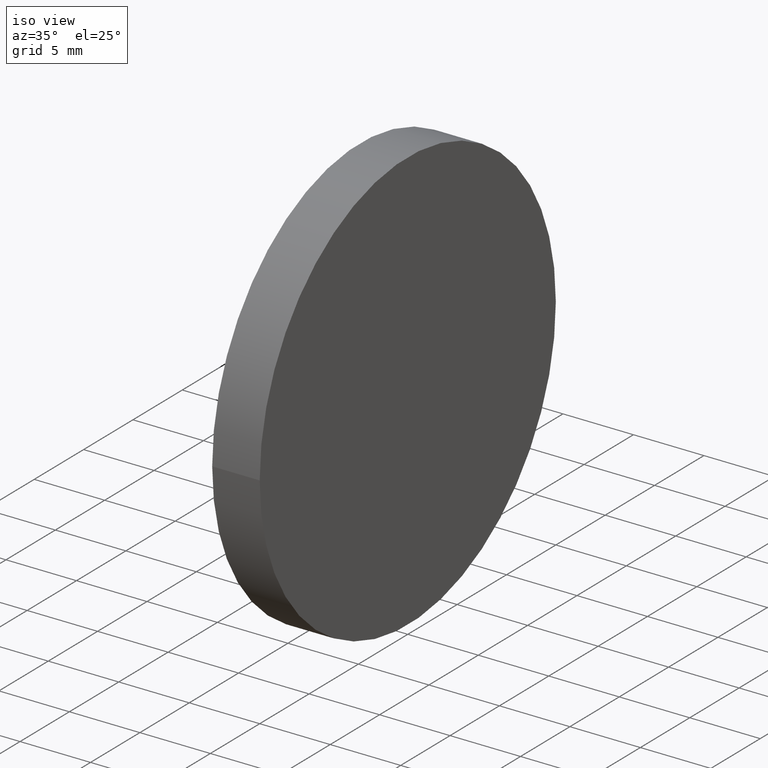
[diagram: clean part render]
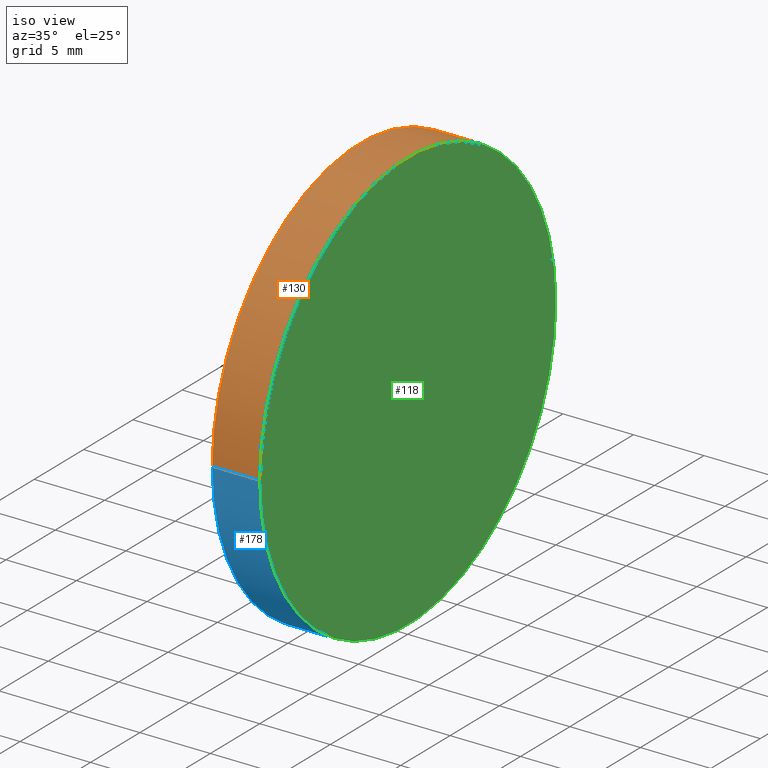
[diagram: same view with three faces highlighted in distinct colors, each labeled with its STEP entity id]
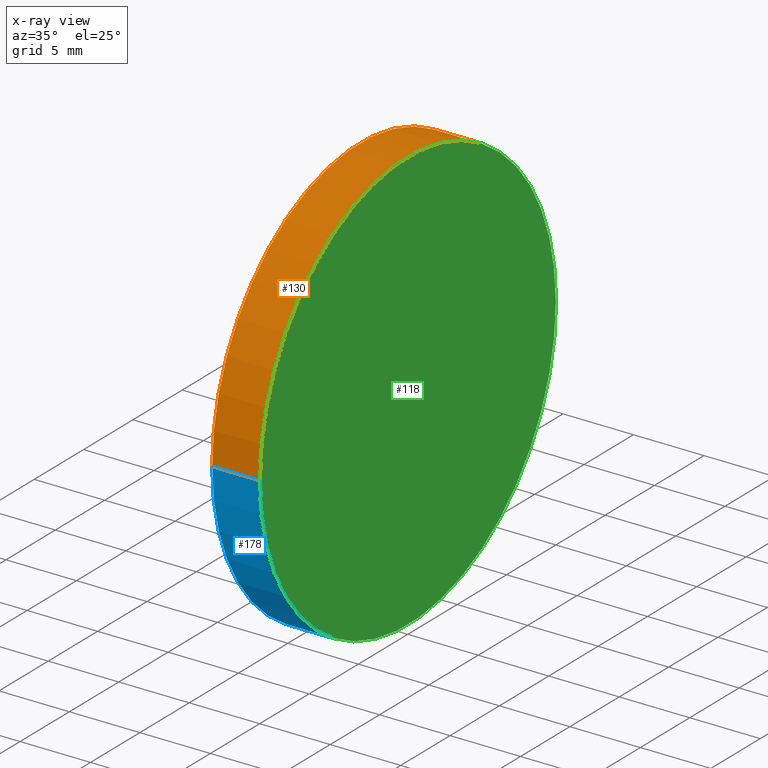
[diagram: x-ray of the same camera — body ghosted, the three highlighted faces saturated]
A machine part, iso view with three faces highlighted in distinct colors.
The next image is the same camera in x-ray (body ghosted, the three faces saturated) — at least one of them is partly hidden behind the body in this view.
Their STEP definitions:

[orange] entity #130 — the highlighted cylindrical surface (partial cylindrical patch) has radius 15 mm, axis along (1, 0, -0).
#4 = AXIS2_PLACEMENT_3D ( 'NONE', #98, #117, #182 ) ;
#8 = CARTESIAN_POINT ( 'NONE',  ( -9.652616528953584771E-16, 15.00000000000000000, 0.000000000000000000 ) ) ;
#12 = DIRECTION ( 'NONE',  ( 1.000000000000000000, 1.224646799147353207E-16, -0.000000000000000000 ) ) ;
#32 = VERTEX_POINT ( 'NONE', #131 ) ;
#44 = LINE ( 'NONE', #99, #156 ) ;
#62 = ORIENTED_EDGE ( 'NONE', *, *, #80, .T. ) ;
#64 = CYLINDRICAL_SURFACE ( 'NONE', #96, 15.00000000000000000 ) ;
#70 = EDGE_CURVE ( 'NONE', #72, #32, #75, .T. ) ;
#72 = VERTEX_POINT ( 'NONE', #84 ) ;
#75 = LINE ( 'NONE', #134, #188 ) ;
#77 = DIRECTION ( 'NONE',  ( -1.224646799147352961E-16, 1.000000000000000000, 0.000000000000000000 ) ) ;
#79 = CARTESIAN_POINT ( 'NONE',  ( -3.370000000000006768, 14.99999999999998579, 0.000000000000000000 ) ) ;
#80 = EDGE_CURVE ( 'NONE', #148, #72, #138, .T. ) ;
#84 = CARTESIAN_POINT ( 'NONE',  ( -3.370000000000004992, -14.99999999999998579, 1.836970198721028011E-15 ) ) ;
#92 = DIRECTION ( 'NONE',  ( 1.000000000000000000, 1.224646799147353207E-16, -0.000000000000000000 ) ) ;
#96 = AXIS2_PLACEMENT_3D ( 'NONE', #152, #92, #77 ) ;
#97 = EDGE_LOOP ( 'NONE', ( #62, #194, #143, #193 ) ) ;
#98 = CARTESIAN_POINT ( 'NONE',  ( -3.369999999999999218, -4.127059713126579305E-16, 0.000000000000000000 ) ) ;
#99 = CARTESIAN_POINT ( 'NONE',  ( -1.836970198721029589E-15, 15.00000000000000000, 0.000000000000000000 ) ) ;
#100 = EDGE_CURVE ( 'NONE', #148, #113, #44, .T. ) ;
#107 = DIRECTION ( 'NONE',  ( 1.000000000000000000, 1.224646799147353207E-16, -0.000000000000000000 ) ) ;
#113 = VERTEX_POINT ( 'NONE', #8 ) ;
#117 = DIRECTION ( 'NONE',  ( 1.000000000000000000, 1.224646799147353207E-16, -0.000000000000000000 ) ) ;
#128 = CIRCLE ( 'NONE', #163, 15.00000000000000000 ) ;
#130 = ADVANCED_FACE ( 'NONE', ( #136 ), #64, .T. ) ;
#131 = CARTESIAN_POINT ( 'NONE',  ( 2.708678744546701095E-15, -15.00000000000000000, 1.836970198721029589E-15 ) ) ;
#134 = CARTESIAN_POINT ( 'NONE',  ( 1.836970198721029589E-15, -15.00000000000000000, 1.836970198721029589E-15 ) ) ;
#136 = FACE_OUTER_BOUND ( 'NONE', #97, .T. ) ;
#138 = CIRCLE ( 'NONE', #4, 15.00000000000000000 ) ;
#143 = ORIENTED_EDGE ( 'NONE', *, *, #157, .F. ) ;
#148 = VERTEX_POINT ( 'NONE', #79 ) ;
#152 = CARTESIAN_POINT ( 'NONE',  ( 0.000000000000000000, 0.000000000000000000, 0.000000000000000000 ) ) ;
#156 = VECTOR ( 'NONE', #12, 1000.000000000000000 ) ;
#157 = EDGE_CURVE ( 'NONE', #113, #32, #128, .T. ) ;
#163 = AXIS2_PLACEMENT_3D ( 'NONE', #195, #107, #187 ) ;
#182 = DIRECTION ( 'NONE',  ( -1.156482317317871478E-16, 1.000000000000000000, 0.000000000000000000 ) ) ;
#187 = DIRECTION ( 'NONE',  ( -1.224646799147352961E-16, 1.000000000000000000, 0.000000000000000000 ) ) ;
#188 = VECTOR ( 'NONE', #192, 1000.000000000000000 ) ;
#192 = DIRECTION ( 'NONE',  ( 1.000000000000000000, 1.224646799147353207E-16, -0.000000000000000000 ) ) ;
#193 = ORIENTED_EDGE ( 'NONE', *, *, #100, .F. ) ;
#194 = ORIENTED_EDGE ( 'NONE', *, *, #70, .T. ) ;
#195 = CARTESIAN_POINT ( 'NONE',  ( 8.717085458256711118E-16, 1.067535080434802035E-31, 0.000000000000000000 ) ) ;

[blue] entity #178 — the highlighted cylindrical surface (partial cylindrical patch) has radius 15 mm, axis along (1, 0, -0).
#8 = CARTESIAN_POINT ( 'NONE',  ( -9.652616528953584771E-16, 15.00000000000000000, 0.000000000000000000 ) ) ;
#12 = DIRECTION ( 'NONE',  ( 1.000000000000000000, 1.224646799147353207E-16, -0.000000000000000000 ) ) ;
#18 = AXIS2_PLACEMENT_3D ( 'NONE', #49, #170, #124 ) ;
#30 = FACE_OUTER_BOUND ( 'NONE', #47, .T. ) ;
#32 = VERTEX_POINT ( 'NONE', #131 ) ;
#41 = EDGE_CURVE ( 'NONE', #32, #113, #150, .T. ) ;
#43 = ORIENTED_EDGE ( 'NONE', *, *, #168, .T. ) ;
#44 = LINE ( 'NONE', #99, #156 ) ;
#47 = EDGE_LOOP ( 'NONE', ( #102, #43, #149, #177 ) ) ;
#49 = CARTESIAN_POINT ( 'NONE',  ( -3.369999999999999218, -4.127059713126579305E-16, 0.000000000000000000 ) ) ;
#56 = AXIS2_PLACEMENT_3D ( 'NONE', #91, #186, #81 ) ;
#57 = DIRECTION ( 'NONE',  ( 1.000000000000000000, 1.224646799147353207E-16, -0.000000000000000000 ) ) ;
#70 = EDGE_CURVE ( 'NONE', #72, #32, #75, .T. ) ;
#72 = VERTEX_POINT ( 'NONE', #84 ) ;
#75 = LINE ( 'NONE', #134, #188 ) ;
#79 = CARTESIAN_POINT ( 'NONE',  ( -3.370000000000006768, 14.99999999999998579, 0.000000000000000000 ) ) ;
#81 = DIRECTION ( 'NONE',  ( -1.224646799147352961E-16, 1.000000000000000000, 0.000000000000000000 ) ) ;
#84 = CARTESIAN_POINT ( 'NONE',  ( -3.370000000000004992, -14.99999999999998579, 1.836970198721028011E-15 ) ) ;
#91 = CARTESIAN_POINT ( 'NONE',  ( 0.000000000000000000, 0.000000000000000000, 0.000000000000000000 ) ) ;
#99 = CARTESIAN_POINT ( 'NONE',  ( -1.836970198721029589E-15, 15.00000000000000000, 0.000000000000000000 ) ) ;
#100 = EDGE_CURVE ( 'NONE', #148, #113, #44, .T. ) ;
#102 = ORIENTED_EDGE ( 'NONE', *, *, #70, .F. ) ;
#113 = VERTEX_POINT ( 'NONE', #8 ) ;
#124 = DIRECTION ( 'NONE',  ( -1.156482317317871478E-16, 1.000000000000000000, 0.000000000000000000 ) ) ;
#131 = CARTESIAN_POINT ( 'NONE',  ( 2.708678744546701095E-15, -15.00000000000000000, 1.836970198721029589E-15 ) ) ;
#132 = CIRCLE ( 'NONE', #18, 15.00000000000000000 ) ;
#134 = CARTESIAN_POINT ( 'NONE',  ( 1.836970198721029589E-15, -15.00000000000000000, 1.836970198721029589E-15 ) ) ;
#148 = VERTEX_POINT ( 'NONE', #79 ) ;
#149 = ORIENTED_EDGE ( 'NONE', *, *, #100, .T. ) ;
#150 = CIRCLE ( 'NONE', #171, 15.00000000000000000 ) ;
#156 = VECTOR ( 'NONE', #12, 1000.000000000000000 ) ;
#166 = DIRECTION ( 'NONE',  ( -1.224646799147352961E-16, 1.000000000000000000, 0.000000000000000000 ) ) ;
#168 = EDGE_CURVE ( 'NONE', #72, #148, #132, .T. ) ;
#169 = CYLINDRICAL_SURFACE ( 'NONE', #56, 15.00000000000000000 ) ;
#170 = DIRECTION ( 'NONE',  ( 1.000000000000000000, 1.224646799147353207E-16, -0.000000000000000000 ) ) ;
#171 = AXIS2_PLACEMENT_3D ( 'NONE', #191, #57, #166 ) ;
#177 = ORIENTED_EDGE ( 'NONE', *, *, #41, .F. ) ;
#178 = ADVANCED_FACE ( 'NONE', ( #30 ), #169, .T. ) ;
#186 = DIRECTION ( 'NONE',  ( 1.000000000000000000, 1.224646799147353207E-16, -0.000000000000000000 ) ) ;
#188 = VECTOR ( 'NONE', #192, 1000.000000000000000 ) ;
#191 = CARTESIAN_POINT ( 'NONE',  ( 8.717085458256711118E-16, 1.067535080434802035E-31, 0.000000000000000000 ) ) ;
#192 = DIRECTION ( 'NONE',  ( 1.000000000000000000, 1.224646799147353207E-16, -0.000000000000000000 ) ) ;

[green] entity #118 — the highlighted planar face has unit normal (1, 0, -0).
#8 = CARTESIAN_POINT ( 'NONE',  ( -9.652616528953584771E-16, 15.00000000000000000, 0.000000000000000000 ) ) ;
#16 = DIRECTION ( 'NONE',  ( 1.000000000000000000, 1.224646799147353207E-16, -0.000000000000000000 ) ) ;
#17 = CARTESIAN_POINT ( 'NONE',  ( -1.401115925808194033E-15, 15.00000000000000000, 0.000000000000000000 ) ) ;
#32 = VERTEX_POINT ( 'NONE', #131 ) ;
#36 = PLANE ( 'NONE',  #82 ) ;
#41 = EDGE_CURVE ( 'NONE', #32, #113, #150, .T. ) ;
#42 = ORIENTED_EDGE ( 'NONE', *, *, #157, .T. ) ;
#55 = EDGE_LOOP ( 'NONE', ( #42, #116 ) ) ;
#57 = DIRECTION ( 'NONE',  ( 1.000000000000000000, 1.224646799147353207E-16, -0.000000000000000000 ) ) ;
#82 = AXIS2_PLACEMENT_3D ( 'NONE', #17, #16, #167 ) ;
#107 = DIRECTION ( 'NONE',  ( 1.000000000000000000, 1.224646799147353207E-16, -0.000000000000000000 ) ) ;
#113 = VERTEX_POINT ( 'NONE', #8 ) ;
#116 = ORIENTED_EDGE ( 'NONE', *, *, #41, .T. ) ;
#118 = ADVANCED_FACE ( 'NONE', ( #135 ), #36, .T. ) ;
#128 = CIRCLE ( 'NONE', #163, 15.00000000000000000 ) ;
#131 = CARTESIAN_POINT ( 'NONE',  ( 2.708678744546701095E-15, -15.00000000000000000, 1.836970198721029589E-15 ) ) ;
#135 = FACE_OUTER_BOUND ( 'NONE', #55, .T. ) ;
#150 = CIRCLE ( 'NONE', #171, 15.00000000000000000 ) ;
#157 = EDGE_CURVE ( 'NONE', #113, #32, #128, .T. ) ;
#163 = AXIS2_PLACEMENT_3D ( 'NONE', #195, #107, #187 ) ;
#166 = DIRECTION ( 'NONE',  ( -1.224646799147352961E-16, 1.000000000000000000, 0.000000000000000000 ) ) ;
#167 = DIRECTION ( 'NONE',  ( -1.224646799147353207E-16, 1.000000000000000000, 0.000000000000000000 ) ) ;
#171 = AXIS2_PLACEMENT_3D ( 'NONE', #191, #57, #166 ) ;
#187 = DIRECTION ( 'NONE',  ( -1.224646799147352961E-16, 1.000000000000000000, 0.000000000000000000 ) ) ;
#191 = CARTESIAN_POINT ( 'NONE',  ( 8.717085458256711118E-16, 1.067535080434802035E-31, 0.000000000000000000 ) ) ;
#195 = CARTESIAN_POINT ( 'NONE',  ( 8.717085458256711118E-16, 1.067535080434802035E-31, 0.000000000000000000 ) ) ;